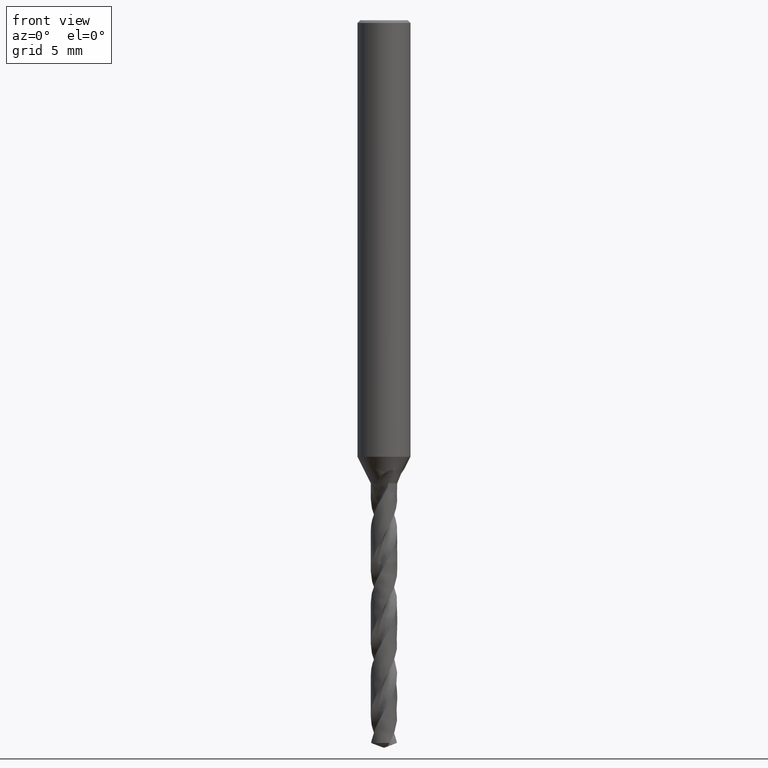
[diagram: clean part render]
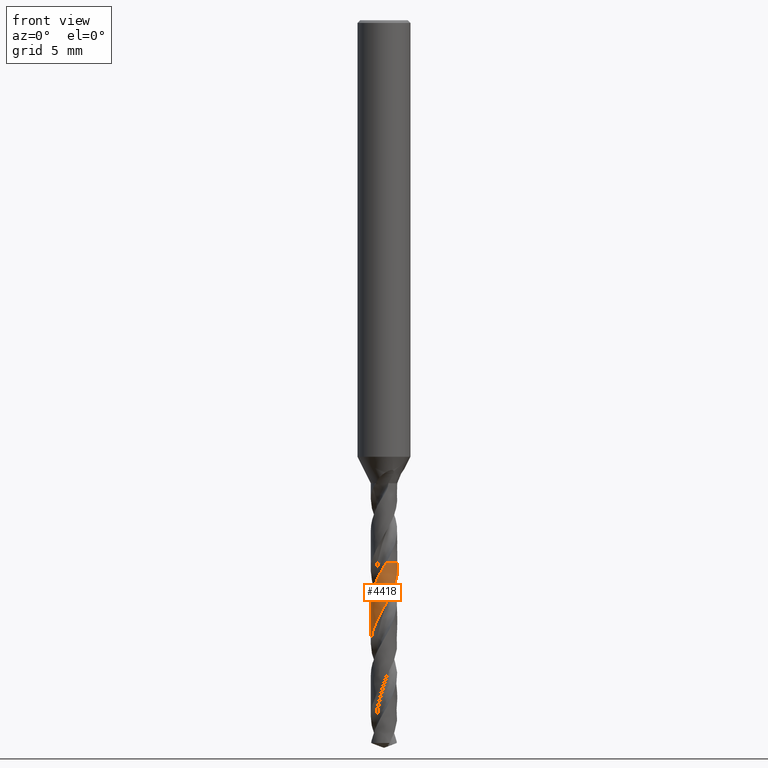
[diagram: same view with one face highlighted and labeled with its STEP entity id]
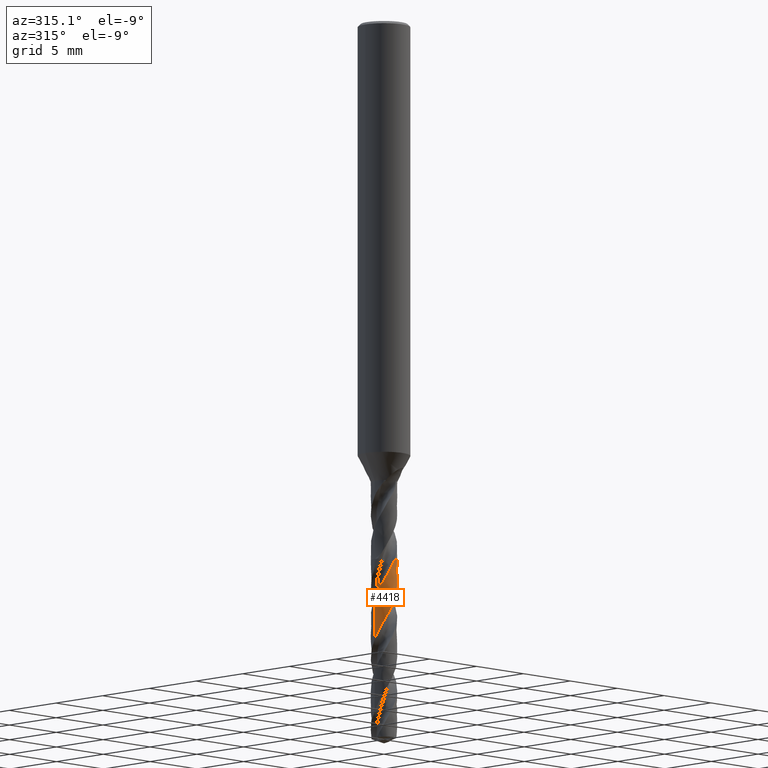
[diagram: same view with one face highlighted and labeled with its STEP entity id]
A machine part, front view. The second image highlights one B-rep face of the part: STEP entity #4418.
A second angle (auxiliary view) of the same face is appended — the face is thin or edge-on in the first view.
In plain terms, the highlighted face is a freeform B-spline surface patch.
Its self-contained STEP definition (entity closure, byte-faithful):
#2416 = VERTEX_POINT('', #2417);
#2417 = CARTESIAN_POINT('', (0.165650388627012, -0.986184540919052, -41.));
#2423 = EDGE_CURVE('', #2424, #2416, #2426, .T.);
#2424 = VERTEX_POINT('', #2425);
#2425 = CARTESIAN_POINT('', (0.931375569243422, 0.364059815162966, -41.));
#2426 = CIRCLE('', #2427, 1.);
#2427 = AXIS2_PLACEMENT_3D('', #2428, #2429, #2430);
#2428 = CARTESIAN_POINT('', (1.5372537772284E-31, 2.51052593825207E-15, -41.));
#2429 = DIRECTION('', (3.74939945665464E-33, 6.12323399573677E-17, -1.));
#2430 = DIRECTION('', (-1., 6.12323399573677E-17, 0.));
#4045 = EDGE_CURVE('', #4046, #2424, #4048, .T.);
#4046 = VERTEX_POINT('', #4047);
#4047 = CARTESIAN_POINT('', (-1., 2.94747739344493E-15, -47.1359588004816));
#4048 = B_SPLINE_CURVE_WITH_KNOTS('', 3, (#4049, #4050, #4051, #4052, #4053, #4054, #4055, #4056, #4057, #4058, #4059, #4060, #4061, #4062, #4063, #4064, #4065, #4066, #4067, #4068, #4069, #4070, #4071, #4072, #4073, #4074, #4075, #4076, #4077, #4078, #4079, #4080, #4081, #4082, #4083, #4084, #4085, #4086, #4087, #4088, #4089, #4090, #4091, #4092, #4093, #4094, #4095, #4096, #4097, #4098, #4099, #4100, #4101, #4102, #4103, #4104, #4105, #4106, #4107, #4108, #4109, #4110, #4111, #4112, #4113, #4114, #4115, #4116, #4117, #4118, #4119, #4120, #4121, #4122, #4123, #4124, #4125, #4126, #4127, #4128, #4129, #4130, #4131, #4132, #4133), .UNSPECIFIED., .F., .U., (4, 3, 3, 3, 3, 3, 3, 3, 3, 3, 3, 3, 3, 3, 3, 3, 3, 3, 3, 3, 3, 3, 3, 3, 3, 3, 3, 3, 4), (0., 0.296574390689262, 0.592916405688471, 0.889039557475778, 1.18495429720634, 1.48066798647281, 1.77618557195127, 2.07150991952944, 2.36664147336652, 2.66157888598917, 2.95631851532401, 3.15291961614, 3.17886672251137, 3.47543256137011, 3.7717654156224, 4.06787873825976, 4.36378283797948, 4.65948503856055, 4.95499017169277, 5.25030097108058, 5.54541779728648, 5.84033911606937, 6.13506115129835, 6.26622888796984, 6.30513398274446, 6.34405189781856, 6.64061631743142, 6.936946678824, 7.069548858319), .UNSPECIFIED.);
#4049 = CARTESIAN_POINT('', (-1., 2.80100167994214E-15, -47.1359588004816));
#4050 = CARTESIAN_POINT('', (-1., -0.0490471500749179, -47.0501257824638));
#4051 = CARTESIAN_POINT('', (-0.996381859284708, -0.0981299920106455, -46.964237549191));
#4052 = CARTESIAN_POINT('', (-0.989187893109566, -0.146653715009606, -46.8784085035857));
#4053 = CARTESIAN_POINT('', (-0.981999563641122, -0.195139418091913, -46.7926467078318));
#4054 = CARTESIAN_POINT('', (-0.971231571813184, -0.243130565584574, -46.7068298705738));
#4055 = CARTESIAN_POINT('', (-0.957012693784498, -0.290046037613715, -46.6210721707052));
#4056 = CARTESIAN_POINT('', (-0.942804317099386, -0.336926860250003, -46.5353778071328));
#4057 = CARTESIAN_POINT('', (-0.925131568389488, -0.382794918592069, -46.4496284332427));
#4058 = CARTESIAN_POINT('', (-0.904206654904667, -0.427095217985541, -46.3639380317005));
#4059 = CARTESIAN_POINT('', (-0.88329646841512, -0.471364338741155, -46.2783079392315));
#4060 = CARTESIAN_POINT('', (-0.859111275695708, -0.514125956418587, -46.1926229783912));
#4061 = CARTESIAN_POINT('', (-0.831941778224161, -0.5548629359087, -46.1069969274667));
#4062 = CARTESIAN_POINT('', (-0.804790740259161, -0.595572237870347, -46.0214290526145));
#4063 = CARTESIAN_POINT('', (-0.774623948965558, -0.634312900073755, -45.9358063569573));
#4064 = CARTESIAN_POINT('', (-0.74180400732832, -0.670616742045442, -45.850242522164));
#4065 = CARTESIAN_POINT('', (-0.709005830374661, -0.706896508970257, -45.7647354293908));
#4066 = CARTESIAN_POINT('', (-0.673515233785818, -0.740790014699688, -45.6791735700835));
#4067 = CARTESIAN_POINT('', (-0.635758826920426, -0.771887759970813, -45.5936704193008));
#4068 = CARTESIAN_POINT('', (-0.598027108835479, -0.802965170536677, -45.5082231787248));
#4069 = CARTESIAN_POINT('', (-0.55798316733116, -0.831291144666102, -45.4227213229507));
#4070 = CARTESIAN_POINT('', (-0.516108174703252, -0.856523410073815, -45.3372781447914));
#4071 = CARTESIAN_POINT('', (-0.47426051892228, -0.881739203345438, -45.2518907456766));
#4072 = CARTESIAN_POINT('', (-0.43052965899811, -0.903898197489342, -45.1664487455989));
#4073 = CARTESIAN_POINT('', (-0.385440799705613, -0.922732566848251, -45.0810653060406));
#4074 = CARTESIAN_POINT('', (-0.340381600426717, -0.941554546724257, -44.995738032773));
#4075 = CARTESIAN_POINT('', (-0.293907393075847, -0.957080834488262, -44.9103562694761));
#4076 = CARTESIAN_POINT('', (-0.246576060470968, -0.969123442293656, -44.8250329873047));
#4077 = CARTESIAN_POINT('', (-0.199276467978325, -0.981157974397348, -44.7397669224228));
#4078 = CARTESIAN_POINT('', (-0.151059241097038, -0.98972919204131, -44.6544464466248));
#4079 = CARTESIAN_POINT('', (-0.102502752345593, -0.994732720765519, -44.5691844073939));
#4080 = CARTESIAN_POINT('', (-0.0701139651240125, -0.998070240247932, -44.5123118015334));
#4081 = CARTESIAN_POINT('', (-0.037551068906431, -0.999825130488055, -44.4554232697617));
#4082 = CARTESIAN_POINT('', (-0.00498808458249439, -0.999987559428833, -44.3985524376938));
#4083 = CARTESIAN_POINT('', (-0.000690472745554129, -1.00000899654687, -44.3910467140586));
#4084 = CARTESIAN_POINT('', (0.00360732655849688, -1.00000272878632, -44.3835409675022));
#4085 = CARTESIAN_POINT('', (0.00790491085890109, -0.999968755704051, -44.376035274373));
#4086 = CARTESIAN_POINT('', (0.0570247115362529, -0.999580455926136, -44.2902479751186));
#4087 = CARTESIAN_POINT('', (0.106151767230128, -0.995562851119469, -44.2044051487291));
#4088 = CARTESIAN_POINT('', (0.154688706130233, -0.987963260549882, -44.1186218281239));
#4089 = CARTESIAN_POINT('', (0.203187514004689, -0.980369640282285, -44.0329058996138));
#4090 = CARTESIAN_POINT('', (0.25116122810077, -0.969189628248382, -43.9471346115607));
#4091 = CARTESIAN_POINT('', (0.298026966093777, -0.954557451115963, -43.8614227697353));
#4092 = CARTESIAN_POINT('', (0.344857984645455, -0.939936113907063, -43.7757744256246));
#4093 = CARTESIAN_POINT('', (0.390644326382255, -0.921848480995844, -43.6900707586455));
#4094 = CARTESIAN_POINT('', (0.434830150309995, -0.900512487632121, -43.6044264068161));
#4095 = CARTESIAN_POINT('', (0.47898475413957, -0.879191569506291, -43.5188425681748));
#4096 = CARTESIAN_POINT('', (0.521599279679286, -0.854598789309377, -43.4332035234188));
#4097 = CARTESIAN_POINT('', (0.562156679396222, -0.827030753847892, -43.3476237081896));
#4098 = CARTESIAN_POINT('', (0.602686406282411, -0.799481528408367, -43.2621022851592));
#4099 = CARTESIAN_POINT('', (0.641215160035631, -0.768924853033832, -43.1765257371447));
#4100 = CARTESIAN_POINT('', (0.677275736331038, -0.735729282397572, -43.091008362838));
#4101 = CARTESIAN_POINT('', (0.7133122804557, -0.702555834580842, -43.005547980636));
#4102 = CARTESIAN_POINT('', (0.746931251005163, -0.666703451706177, -42.9200325283765));
#4103 = CARTESIAN_POINT('', (0.777725087834873, -0.628604555942952, -42.8345761018567));
#4104 = CARTESIAN_POINT('', (0.808498673640335, -0.590530715247277, -42.7491758742502));
#4105 = CARTESIAN_POINT('', (0.836491351508371, -0.550163196153244, -42.6637207173935));
#4106 = CARTESIAN_POINT('', (0.86136373338913, -0.507988699482519, -42.5783245450317));
#4107 = CARTESIAN_POINT('', (0.886219777990438, -0.465841904884767, -42.4929844646493));
#4108 = CARTESIAN_POINT('', (0.907992238044918, -0.421835218493698, -42.4075894790577));
#4109 = CARTESIAN_POINT('', (0.926417064559729, -0.376498901051006, -42.3222533867146));
#4110 = CARTESIAN_POINT('', (0.944829685093616, -0.331192617770398, -42.2369738273713));
#4111 = CARTESIAN_POINT('', (0.95992325671079, -0.284499041227747, -42.1516394563757));
#4112 = CARTESIAN_POINT('', (0.971514398835873, -0.236980532650122, -42.0663638801056));
#4113 = CARTESIAN_POINT('', (0.983097708621108, -0.189494133169612, -41.9811459260514));
#4114 = CARTESIAN_POINT('', (0.99119851970365, -0.141121625233668, -41.8958732631744));
#4115 = CARTESIAN_POINT('', (0.99571777427876, -0.0924451944957283, -41.8106593422278));
#4116 = CARTESIAN_POINT('', (0.997729094516823, -0.0707814690665067, -41.7727343966608));
#4117 = CARTESIAN_POINT('', (0.999033362045408, -0.0490485747593374, -41.734804820549));
#4118 = CARTESIAN_POINT('', (0.99962732814958, -0.027298439818794, -41.6968806496395));
#4119 = CARTESIAN_POINT('', (0.999803501865481, -0.0208472264130009, -41.6856321254145));
#4120 = CARTESIAN_POINT('', (0.999917225941242, -0.0143941688950719, -41.6743835072446));
#4121 = CARTESIAN_POINT('', (0.999968472726275, -0.00794062676881361, -41.6631350559461));
#4122 = CARTESIAN_POINT('', (1.00001973639853, -0.00148495802281102, -41.6518828979732));
#4123 = CARTESIAN_POINT('', (1.00000848277157, 0.00497134542849611, -41.6406306456486));
#4124 = CARTESIAN_POINT('', (0.999934710613808, 0.0114269203935873, -41.6293785589307));
#4125 = CARTESIAN_POINT('', (0.999372547992609, 0.0606200449262038, -41.5436347938659));
#4126 = CARTESIAN_POINT('', (0.995169943333916, 0.109807781707584, -41.4578351931305));
#4127 = CARTESIAN_POINT('', (0.987376633456163, 0.158389973500057, -41.3720954255931));
#4128 = CARTESIAN_POINT('', (0.979589474310323, 0.206933822657351, -41.2864233266499));
#4129 = CARTESIAN_POINT('', (0.968206927078156, 0.254937619576871, -41.20069554448));
#4130 = CARTESIAN_POINT('', (0.953366153324072, 0.301816132266206, -41.1150275215175));
#4131 = CARTESIAN_POINT('', (0.946725190393593, 0.322793371739333, -41.0766927167257));
#4132 = CARTESIAN_POINT('', (0.939386604833921, 0.343565153234979, -41.0383340105416));
#4133 = CARTESIAN_POINT('', (0.931375569243422, 0.364059815162966, -41.));
#4418 = ADVANCED_FACE('', (#4419), #4480, .T.);
#4419 = FACE_OUTER_BOUND('', #4420, .T.);
#4420 = EDGE_LOOP('', (#4421, #4422, #4473, #4479));
#4421 = ORIENTED_EDGE('', *, *, #2423, .T.);
#4422 = ORIENTED_EDGE('', *, *, #4423, .T.);
#4423 = EDGE_CURVE('', #2416, #4424, #4426, .T.);
#4424 = VERTEX_POINT('', #4425);
#4425 = CARTESIAN_POINT('', (-1., 2.75683831883059E-15, -44.0225864428831));
#4426 = B_SPLINE_CURVE_WITH_KNOTS('', 3, (#4427, #4428, #4429, #4430, #4431, #4432, #4433, #4434, #4435, #4436, #4437, #4438, #4439, #4440, #4441, #4442, #4443, #4444, #4445, #4446, #4447, #4448, #4449, #4450, #4451, #4452, #4453, #4454, #4455, #4456, #4457, #4458, #4459, #4460, #4461, #4462, #4463, #4464, #4465, #4466, #4467, #4468, #4469, #4470, #4471, #4472), .UNSPECIFIED., .F., .U., (4, 3, 3, 3, 3, 3, 3, 3, 3, 3, 3, 3, 3, 3, 3, 4), (2.50959100792362, 2.65963698730032, 2.7908024738532, 2.82970737101429, 2.85565203284013, 3.15223081096524, 3.44857183788716, 3.74468976163891, 4.04059535909722, 4.33629692645648, 4.63179977316579, 4.92710708928944, 5.22222005072364, 5.51713733843636, 5.8118558547127, 5.99512234232456), .UNSPECIFIED.);
#4427 = CARTESIAN_POINT('', (0.165650388627012, -0.986184540919052, -41.));
#4428 = CARTESIAN_POINT('', (0.141035113716943, -0.990319192889173, -41.0433419632109));
#4429 = CARTESIAN_POINT('', (0.116249569654234, -0.993533535015806, -41.0867142254659));
#4430 = CARTESIAN_POINT('', (0.0913971104101845, -0.99581452500386, -41.1300580281947));
#4431 = CARTESIAN_POINT('', (0.0696718704382602, -0.997808494871285, -41.1679478203609));
#4432 = CARTESIAN_POINT('', (0.0478797299352996, -0.999091281348552, -41.2058433978935));
#4433 = CARTESIAN_POINT('', (0.0260729989291525, -0.999660041577554, -41.2437345751344));
#4434 = CARTESIAN_POINT('', (0.0196049207059095, -0.999828741124974, -41.2549734489618));
#4435 = CARTESIAN_POINT('', (0.0131352366271249, -0.999934661469167, -41.2662125163451));
#4436 = CARTESIAN_POINT('', (0.00666532248963937, -0.999977786491332, -41.2774515168181));
#4437 = CARTESIAN_POINT('', (0.00235070539543973, -1.00000654544452, -41.284946513279));
#4438 = CARTESIAN_POINT('', (-0.0019640702757913, -1.00000737912591, -41.2924415776202));
#4439 = CARTESIAN_POINT('', (-0.00627859741880834, -0.99998028941297, -41.2999366320813));
#4440 = CARTESIAN_POINT('', (-0.0555988466806, -0.99967062131952, -41.3856141448188));
#4441 = CARTESIAN_POINT('', (-0.10492283992341, -0.995702030486577, -41.4713536063224));
#4442 = CARTESIAN_POINT('', (-0.15364592619141, -0.9881259683688, -41.5570383962082));
#4443 = CARTESIAN_POINT('', (-0.202329953790221, -0.980555979571222, -41.6426544972215));
#4444 = CARTESIAN_POINT('', (-0.250479395036764, -0.969374175861278, -41.728332291552));
#4445 = CARTESIAN_POINT('', (-0.297505730673094, -0.954720032374237, -41.8139555118933));
#4446 = CARTESIAN_POINT('', (-0.344496662083858, -0.940076921398967, -41.8995142699762));
#4447 = CARTESIAN_POINT('', (-0.390428787902689, -0.921947223678352, -41.9851346318596));
#4448 = CARTESIAN_POINT('', (-0.434742326675026, -0.900554889719556, -42.0707006750533));
#4449 = CARTESIAN_POINT('', (-0.479024091182172, -0.879177894768004, -42.156205364579));
#4450 = CARTESIAN_POINT('', (-0.521748697934877, -0.854514442095585, -42.2417713922701));
#4451 = CARTESIAN_POINT('', (-0.562396910693032, -0.826867410679013, -42.3272831865755));
#4452 = CARTESIAN_POINT('', (-0.603017096070338, -0.799239442188613, -42.4127360195769));
#4453 = CARTESIAN_POINT('', (-0.641617628217961, -0.768595405518671, -42.4982500773734));
#4454 = CARTESIAN_POINT('', (-0.677730847690305, -0.735310069351005, -42.5837100829112));
#4455 = CARTESIAN_POINT('', (-0.713819797956, -0.702047101964457, -42.6691126566673));
#4456 = CARTESIAN_POINT('', (-0.747472593381155, -0.666102339665044, -42.754576243523));
#4457 = CARTESIAN_POINT('', (-0.778282672453703, -0.627914071954371, -42.8399860331938));
#4458 = CARTESIAN_POINT('', (-0.80907236487728, -0.589751072949006, -42.9253393082612));
#4459 = CARTESIAN_POINT('', (-0.837063993582633, -0.549296906816329, -43.0107533540605));
#4460 = CARTESIAN_POINT('', (-0.861920603209674, -0.507043266164409, -43.0961136494375));
#4461 = CARTESIAN_POINT('', (-0.886760853612337, -0.464817434485578, -43.1814177654624));
#4462 = CARTESIAN_POINT('', (-0.908502922358552, -0.420738957635131, -43.2667826031309));
#4463 = CARTESIAN_POINT('', (-0.926886371347061, -0.375342050150405, -43.3520939195312));
#4464 = CARTESIAN_POINT('', (-0.945257631247501, -0.329975242942494, -43.4373486705312));
#4465 = CARTESIAN_POINT('', (-0.960298963727375, -0.283231964592862, -43.5226638877053));
#4466 = CARTESIAN_POINT('', (-0.971831376480371, -0.235677270198976, -43.6079257047857));
#4467 = CARTESIAN_POINT('', (-0.98335601649727, -0.188154627215114, -43.6931300562153));
#4468 = CARTESIAN_POINT('', (-0.99139162662782, -0.139759289269794, -43.7783947273552));
#4469 = CARTESIAN_POINT('', (-0.995844066268001, -0.0910746708959865, -43.8636061358713));
#4470 = CARTESIAN_POINT('', (-0.998612752078685, -0.0608008383495243, -43.9165936296348));
#4471 = CARTESIAN_POINT('', (-1., -0.0303954224996525, -43.9695962235537));
#4472 = CARTESIAN_POINT('', (-1., 2.49576243569608E-15, -44.0225864428831));
#4473 = ORIENTED_EDGE('', *, *, #4474, .T.);
#4474 = EDGE_CURVE('', #4424, #4046, #4475, .T.);
#4475 = LINE('', #4476, #4477);
#4476 = CARTESIAN_POINT('', (-1., 2.75683831883059E-15, -44.0225864428831));
#4477 = VECTOR('', #4478, 3.11337235759846);
#4478 = DIRECTION('', (0., 1.90639074614341E-16, -3.11337235759846));
#4479 = ORIENTED_EDGE('', *, *, #4045, .T.);
#4480 = (
   BOUNDED_SURFACE ()
   B_SPLINE_SURFACE (2, 1, ((#4481, #4482), (#4483, #4484), (#4485, #4486), (#4487, #4488), (#4489, #4490), (#4491, #4492), (#4493, #4494)), .UNSPECIFIED., .F., .F., .U.)
   B_SPLINE_SURFACE_WITH_KNOTS ((3, 2, 2, 3), (2, 2), (2.75318249252668, 3.14159265358979, 4.71238898038469, 6.28318530717959), (0.305560750904463, 0.618045447336796), .UNSPECIFIED.)
   GEOMETRIC_REPRESENTATION_ITEM ()
   RATIONAL_B_SPLINE_SURFACE (((0.89096912913478, 0.89096912913478), (0.927576414361911, 0.927576414361911), (1., 1.), (0.707106781186548, 0.707106781186548), (1., 1.), (0.707106781186548, 0.707106781186548), (1., 1.)))
   REPRESENTATION_ITEM ('')
   SURFACE ()
);
#4481 = CARTESIAN_POINT('', (0.931375569243417, 0.364059815162978, -41.));
#4482 = CARTESIAN_POINT('', (0.931375569243417, 0.364059815162979, -47.1359588004816));
#4483 = CARTESIAN_POINT('', (1., 0.188497680596423, -41.));
#4484 = CARTESIAN_POINT('', (1., 0.188497680596424, -47.1359588004816));
#4485 = CARTESIAN_POINT('', (1., 2.57175827820944E-15, -41.));
#4486 = CARTESIAN_POINT('', (1., 2.94747739344493E-15, -47.1359588004816));
#4487 = CARTESIAN_POINT('', (1., -0.999999999999997, -41.));
#4488 = CARTESIAN_POINT('', (1., -0.999999999999997, -47.1359588004816));
#4489 = CARTESIAN_POINT('', (1.22464679914735E-16, -0.999999999999997, -41.));
#4490 = CARTESIAN_POINT('', (1.22464679914735E-16, -0.999999999999997, -47.1359588004816));
#4491 = CARTESIAN_POINT('', (-1., -0.999999999999997, -41.));
#4492 = CARTESIAN_POINT('', (-1., -0.999999999999997, -47.1359588004816));
#4493 = CARTESIAN_POINT('', (-1., 2.57175827820944E-15, -41.));
#4494 = CARTESIAN_POINT('', (-1., 2.94747739344493E-15, -47.1359588004816));